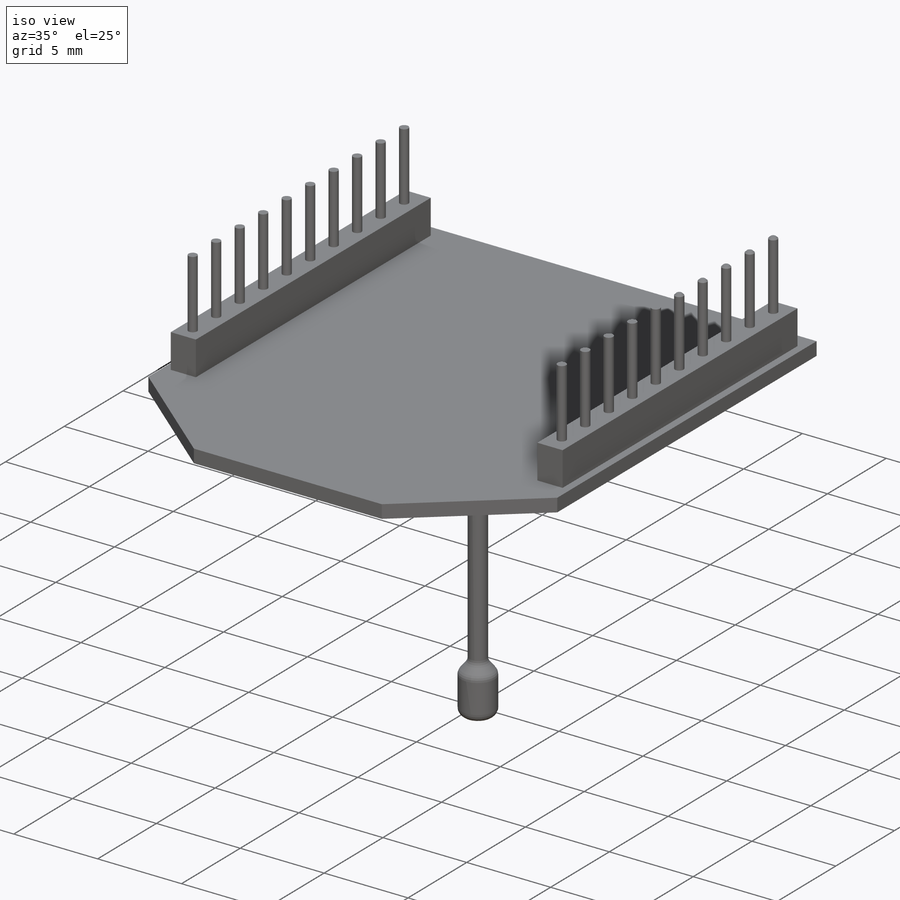
[diagram: iso view]
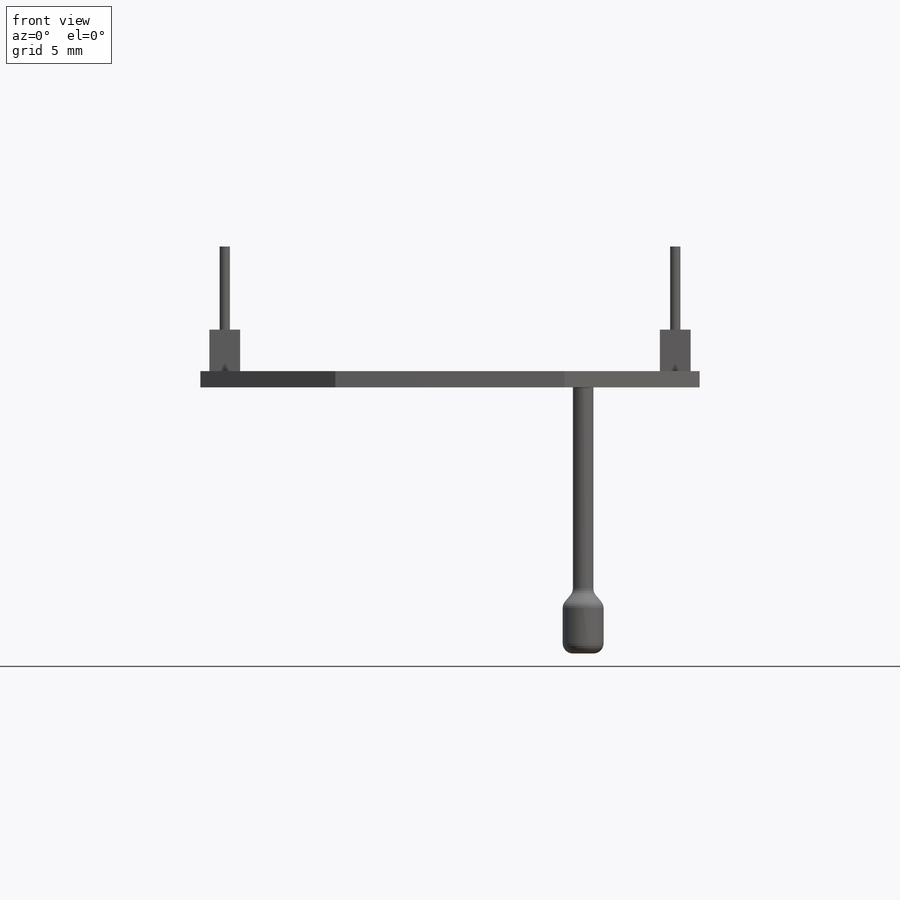
[diagram: front view]
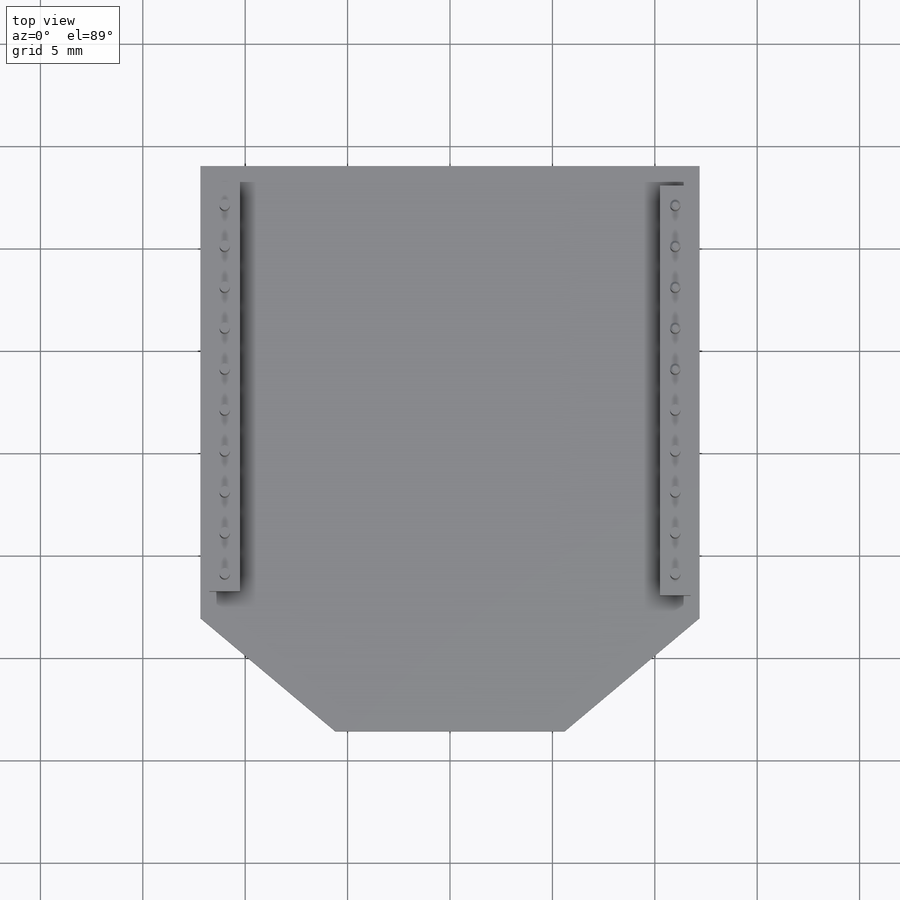
[diagram: top view]
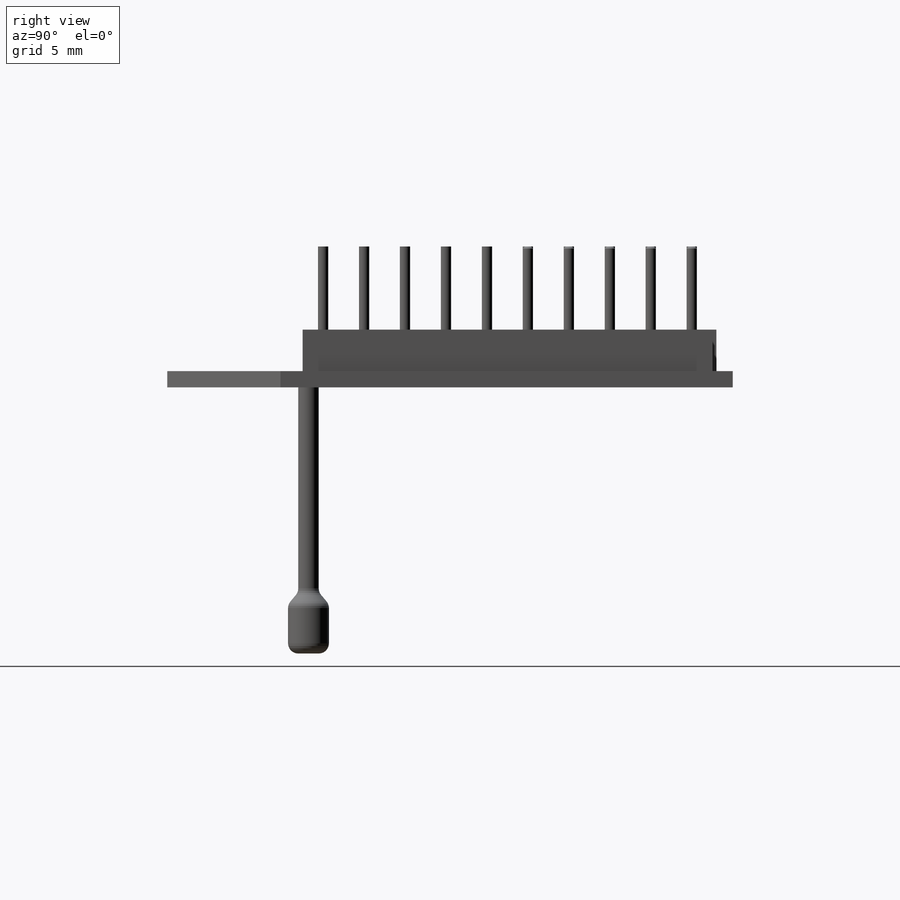
[diagram: right view]
SOLIDWORKS PART (.sldprt)
format: sldprt  version: not decoded by parser v0  size: 267,264 bytes
history: native  units: mm
features: sketch x5, extrude x5, chamfer x3, material x1, pattern_linear x1, fillet x1 (+17 scaffold rows collapsed)
feature tree (33):
  scaffold x17  (default folders/planes/origin — collapsed)
  material  "Material <not specified>"
  sketch  "Sketch1"  dims[D1=27.61mm D2=24.38mm]
  extrude  "Extrude1"  Depth=0.79mm
  chamfer  "Chamfer1"  Distance=5.53mm Angle=50deg
  sketch  "Sketch2"  dims[D1=20.0mm D2=20.0mm D3=1.5mm D4=1.5mm D5=22.0mm D6=1.0mm]
  extrude  "Extrude2"  Depth=2.03mm
  sketch  "Sketch3"  dims[D3=0.5mm D1=1.0mm D2=1.0mm]
  extrude  "Extrude3"  Depth=4.06mm
  pattern_linear  "LPattern1"  Count1=10 Count2=2 Spacing1=2mm Spacing2=22mm
  sketch  "Sketch4"  dims[D1=1.0mm]
  extrude  "Extrude4"  Depth=10mm
  sketch  "Sketch6"  dims[D1=2.0mm]
  extrude  "Extrude5"  Depth=3mm
  chamfer  "Chamfer2"  Distance=0.5mm Angle=50deg
  fillet  "Fillet3"  Radius=0.5mm
  chamfer  "Chamfer3"  Distance=0.1mm Angle=45deg
decode coverage: 15 of 15 modeling features carry decoded parameters
note: suppression state not decoded; provenance and decode notes live in map.json
